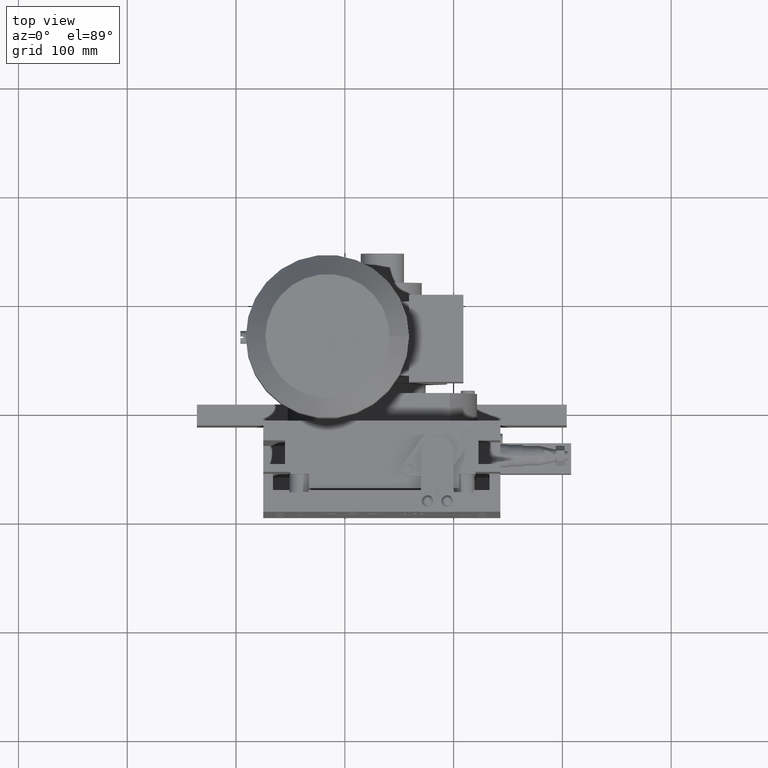
[diagram: clean part render]
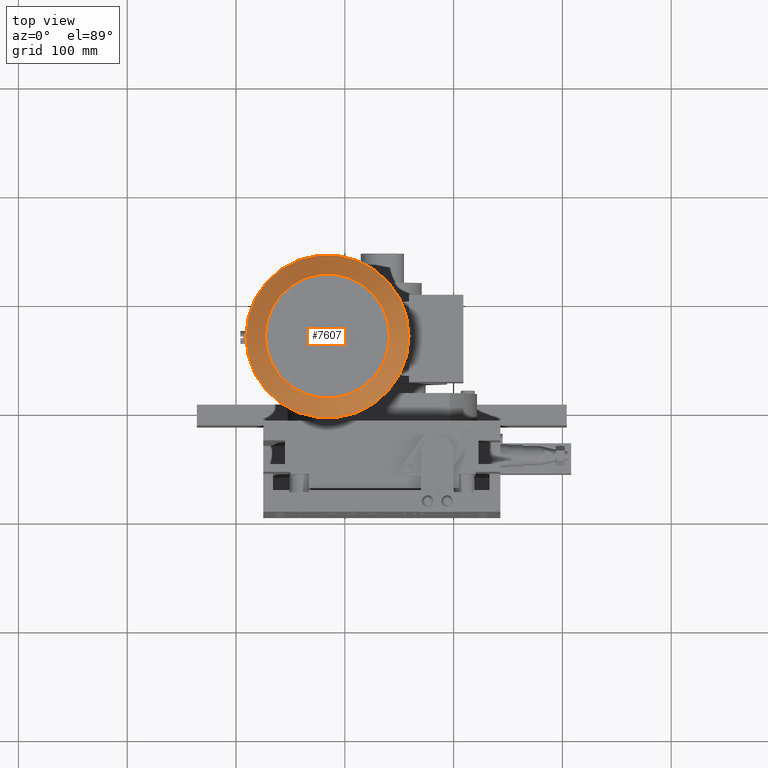
[diagram: same view with one face highlighted and labeled with its STEP entity id]
A machine part, top view. The second image highlights one B-rep face of the part: STEP entity #7607.
In plain terms, the highlighted conical surface has half-angle 45 deg.
Its self-contained STEP definition (entity closure, byte-faithful):
#7607=ADVANCED_FACE('',(#14878,#14879),#14880,.T.);
#14878=FACE_OUTER_BOUND('',#25216,.T.);
#14879=FACE_BOUND('',#25217,.T.);
#14880=CONICAL_SURFACE('',#25218,57.0000000000000,0.785398163397448);
#25216=EDGE_LOOP('',(#42449));
#25217=EDGE_LOOP('',(#42450));
#25218=AXIS2_PLACEMENT_3D('',#42451,#42452,#42453);
#42449=ORIENTED_EDGE('',*,*,#51004,.F.);
#42450=ORIENTED_EDGE('',*,*,#53218,.F.);
#42451=CARTESIAN_POINT('',(0.000000000000000,0.000000000000000,75.0000000000000));
#42452=DIRECTION('',(-0.000000000000000,0.000000000000000,-1.00000000000000));
#42453=DIRECTION('',(-1.00000000000000,0.000000000000000,0.000000000000000));
#51004=EDGE_CURVE('',#61230,#61230,#61231,.F.);
#53218=EDGE_CURVE('',#64563,#64563,#64564,.T.);
#61230=VERTEX_POINT('',#75675);
#61231=CIRCLE('',#75676,75.0000000000000);
#64563=VERTEX_POINT('',#80645);
#64564=CIRCLE('',#80646,57.0000000000000);
#75675=CARTESIAN_POINT('',(75.0000000000000,0.000000000000000,57.0000000000000));
#75676=AXIS2_PLACEMENT_3D('',#88484,#88485,#88486);
#80645=CARTESIAN_POINT('',(57.0000000000000,0.000000000000000,75.0000000000000));
#80646=AXIS2_PLACEMENT_3D('',#90444,#90445,#90446);
#88484=CARTESIAN_POINT('',(0.000000000000000,0.000000000000000,57.0000000000000));
#88485=DIRECTION('',(0.000000000000000,0.000000000000000,1.00000000000000));
#88486=DIRECTION('',(1.00000000000000,0.000000000000000,0.000000000000000));
#90444=CARTESIAN_POINT('',(0.000000000000000,0.000000000000000,75.0000000000000));
#90445=DIRECTION('',(0.000000000000000,0.000000000000000,1.00000000000000));
#90446=DIRECTION('',(1.00000000000000,0.000000000000000,0.000000000000000));